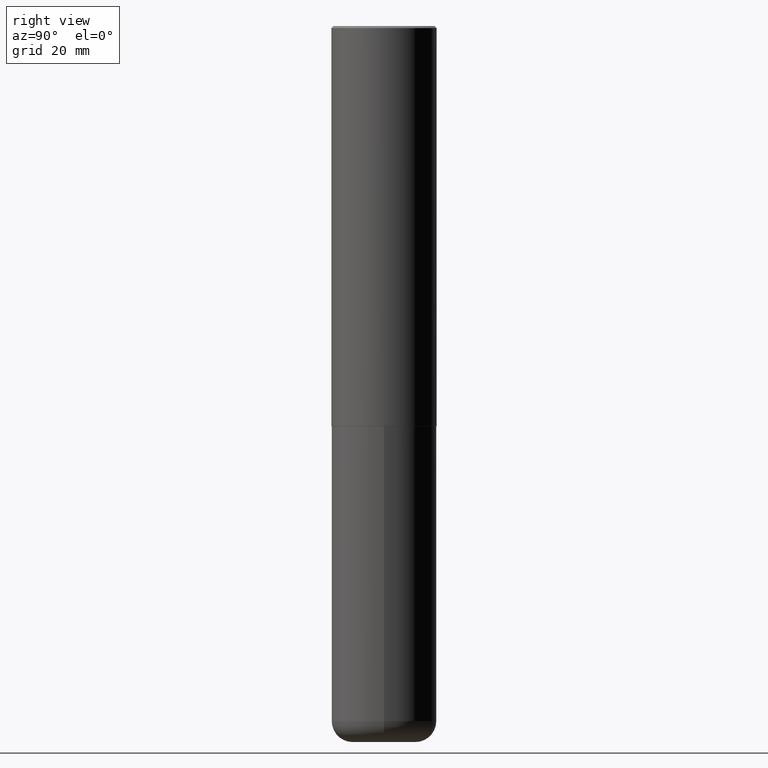
[diagram: clean part render]
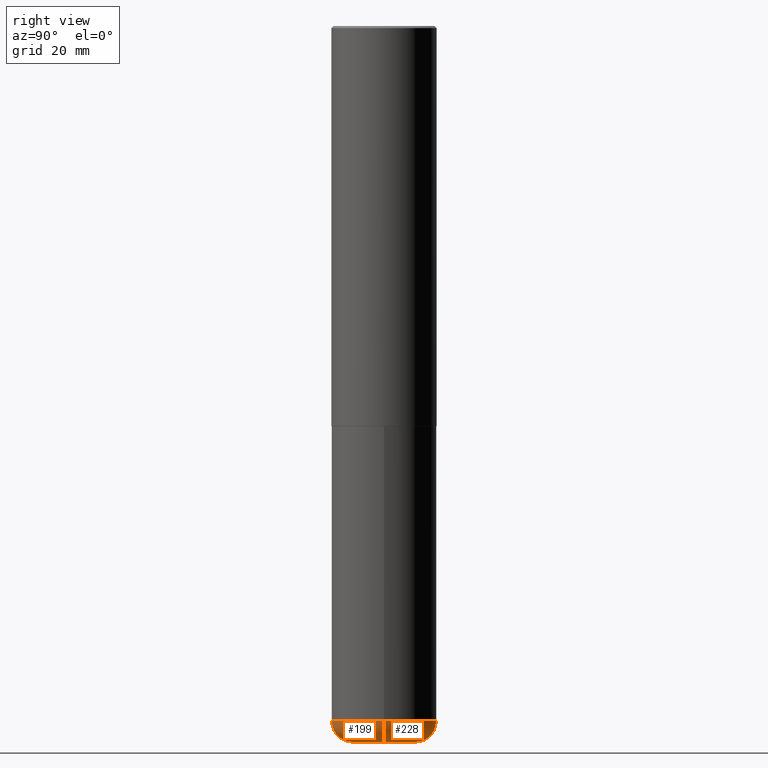
[diagram: same view with one multi-face feature highlighted, each face labeled with its STEP entity id]
A machine part, right view. The highlighted faces form ONE feature: a constant-radius fillet chain: 2 tangent blend faces with common blend radius 5.0013 mm. The faces share edges in the B-rep.
Their STEP definitions:
[1] entity #199 (Torus):
#10 = CIRCLE ( 'NONE', #140, 0.4921499999999999764 ) ;
#12 = DIRECTION ( 'NONE',  ( 7.105427357601001859E-15, 1.000000000000000000, -3.491481338843145583E-15 ) ) ;
#16 = DIRECTION ( 'NONE',  ( -2.445468806185136597E-29, 3.491481338843145583E-15, 1.000000000000000000 ) ) ;
#37 = CIRCLE ( 'NONE', #178, 0.1968999999999995754 ) ;
#41 = DIRECTION ( 'NONE',  ( -2.445468806185136597E-29, 3.491481338843145583E-15, 1.000000000000000000 ) ) ;
#42 = EDGE_CURVE ( 'NONE', #95, #332, #10, .T. ) ;
#72 = CIRCLE ( 'NONE', #206, 0.2952500000000000124 ) ;
#79 = ORIENTED_EDGE ( 'NONE', *, *, #42, .F. ) ;
#82 = EDGE_CURVE ( 'NONE', #383, #95, #37, .T. ) ;
#95 = VERTEX_POINT ( 'NONE', #213 ) ;
#115 = DIRECTION ( 'NONE',  ( 1.000000000000000000, -6.982962677686265922E-15, 0.000000000000000000 ) ) ;
#124 = CARTESIAN_POINT ( 'NONE',  ( -0.2952500000000000124, -2.022699236424666989E-14, -6.692899999999998961 ) ) ;
#140 = AXIS2_PLACEMENT_3D ( 'NONE', #313, #16, #115 ) ;
#143 = DIRECTION ( 'NONE',  ( 1.000000000000000000, -6.982962677686264344E-15, 4.883557194083111780E-29 ) ) ;
#162 = EDGE_CURVE ( 'NONE', #383, #333, #72, .T. ) ;
#165 = ORIENTED_EDGE ( 'NONE', *, *, #212, .T. ) ;
#176 = CARTESIAN_POINT ( 'NONE',  ( 1.588576536497864771E-28, -2.268066277712507367E-14, -6.495999999999999552 ) ) ;
#178 = AXIS2_PLACEMENT_3D ( 'NONE', #306, #12, #371 ) ;
#199 = ADVANCED_FACE ( 'NONE', ( #377 ), #248, .T. ) ;
#201 = ORIENTED_EDGE ( 'NONE', *, *, #82, .F. ) ;
#206 = AXIS2_PLACEMENT_3D ( 'NONE', #351, #310, #242 ) ;
#212 = EDGE_CURVE ( 'NONE', #333, #332, #395, .T. ) ;
#213 = CARTESIAN_POINT ( 'NONE',  ( -0.4921499999999997543, -1.918372670308173998E-14, -6.495999999999999552 ) ) ;
#218 = CARTESIAN_POINT ( 'NONE',  ( 0.2952499999999999569, -2.474238250771194590E-14, -6.495999999999999552 ) ) ;
#242 = DIRECTION ( 'NONE',  ( 1.000000000000000000, -6.982962677686273021E-15, 0.000000000000000000 ) ) ;
#244 = AXIS2_PLACEMENT_3D ( 'NONE', #176, #41, #143 ) ;
#248 = TOROIDAL_SURFACE ( 'NONE', #244, 0.2952499999999999569, 0.1968999999999996031 ) ;
#278 = DIRECTION ( 'NONE',  ( -6.982962677686266711E-15, -1.000000000000000000, 3.491481338843145583E-15 ) ) ;
#289 = EDGE_LOOP ( 'NONE', ( #201, #327, #165, #79 ) ) ;
#299 = AXIS2_PLACEMENT_3D ( 'NONE', #218, #278, #305 ) ;
#305 = DIRECTION ( 'NONE',  ( 1.000000000000000000, -6.982962677686270655E-15, 0.000000000000000000 ) ) ;
#306 = CARTESIAN_POINT ( 'NONE',  ( -0.2952499999999999569, -2.058278534979337620E-14, -6.495999999999999552 ) ) ;
#310 = DIRECTION ( 'NONE',  ( -2.445468806185136597E-29, 3.491481338843145583E-15, 1.000000000000000000 ) ) ;
#313 = CARTESIAN_POINT ( 'NONE',  ( 1.588576536497864771E-28, -2.268066277712507367E-14, -6.495999999999999552 ) ) ;
#317 = CARTESIAN_POINT ( 'NONE',  ( 0.2952500000000000124, -2.542985518333015688E-14, -6.692899999999998961 ) ) ;
#320 = CARTESIAN_POINT ( 'NONE',  ( 0.4921499999999997543, -2.611732785894836787E-14, -6.495999999999999552 ) ) ;
#327 = ORIENTED_EDGE ( 'NONE', *, *, #162, .T. ) ;
#332 = VERTEX_POINT ( 'NONE', #320 ) ;
#333 = VERTEX_POINT ( 'NONE', #317 ) ;
#351 = CARTESIAN_POINT ( 'NONE',  ( 1.636727817291649742E-28, -2.336813545274328465E-14, -6.692899999999998961 ) ) ;
#371 = DIRECTION ( 'NONE',  ( -1.000000000000000000, 7.105427357601008170E-15, 0.000000000000000000 ) ) ;
#377 = FACE_OUTER_BOUND ( 'NONE', #289, .T. ) ;
#383 = VERTEX_POINT ( 'NONE', #124 ) ;
#395 = CIRCLE ( 'NONE', #299, 0.1968999999999995754 ) ;
[2] entity #228 (Torus):
#4 = CIRCLE ( 'NONE', #80, 0.4921499999999999764 ) ;
#12 = DIRECTION ( 'NONE',  ( 7.105427357601001859E-15, 1.000000000000000000, -3.491481338843145583E-15 ) ) ;
#29 = EDGE_CURVE ( 'NONE', #332, #95, #4, .T. ) ;
#37 = CIRCLE ( 'NONE', #178, 0.1968999999999995754 ) ;
#39 = DIRECTION ( 'NONE',  ( -2.445468806185136597E-29, 3.491481338843145583E-15, 1.000000000000000000 ) ) ;
#46 = CIRCLE ( 'NONE', #112, 0.2952500000000000124 ) ;
#59 = AXIS2_PLACEMENT_3D ( 'NONE', #76, #148, #209 ) ;
#76 = CARTESIAN_POINT ( 'NONE',  ( 1.588576536497864771E-28, -2.268066277712507367E-14, -6.495999999999999552 ) ) ;
#80 = AXIS2_PLACEMENT_3D ( 'NONE', #373, #210, #399 ) ;
#82 = EDGE_CURVE ( 'NONE', #383, #95, #37, .T. ) ;
#92 = ORIENTED_EDGE ( 'NONE', *, *, #29, .F. ) ;
#95 = VERTEX_POINT ( 'NONE', #213 ) ;
#112 = AXIS2_PLACEMENT_3D ( 'NONE', #369, #39, #343 ) ;
#124 = CARTESIAN_POINT ( 'NONE',  ( -0.2952500000000000124, -2.022699236424666989E-14, -6.692899999999998961 ) ) ;
#137 = EDGE_LOOP ( 'NONE', ( #301, #387, #92, #416 ) ) ;
#148 = DIRECTION ( 'NONE',  ( -2.445468806185136597E-29, 3.491481338843145583E-15, 1.000000000000000000 ) ) ;
#178 = AXIS2_PLACEMENT_3D ( 'NONE', #306, #12, #371 ) ;
#209 = DIRECTION ( 'NONE',  ( 1.000000000000000000, -6.982962677686264344E-15, 4.883557194083111780E-29 ) ) ;
#210 = DIRECTION ( 'NONE',  ( -2.445468806185136597E-29, 3.491481338843145583E-15, 1.000000000000000000 ) ) ;
#212 = EDGE_CURVE ( 'NONE', #333, #332, #395, .T. ) ;
#213 = CARTESIAN_POINT ( 'NONE',  ( -0.4921499999999997543, -1.918372670308173998E-14, -6.495999999999999552 ) ) ;
#218 = CARTESIAN_POINT ( 'NONE',  ( 0.2952499999999999569, -2.474238250771194590E-14, -6.495999999999999552 ) ) ;
#228 = ADVANCED_FACE ( 'NONE', ( #403 ), #259, .T. ) ;
#259 = TOROIDAL_SURFACE ( 'NONE', #59, 0.2952499999999999569, 0.1968999999999996031 ) ;
#278 = DIRECTION ( 'NONE',  ( -6.982962677686266711E-15, -1.000000000000000000, 3.491481338843145583E-15 ) ) ;
#299 = AXIS2_PLACEMENT_3D ( 'NONE', #218, #278, #305 ) ;
#301 = ORIENTED_EDGE ( 'NONE', *, *, #318, .T. ) ;
#305 = DIRECTION ( 'NONE',  ( 1.000000000000000000, -6.982962677686270655E-15, 0.000000000000000000 ) ) ;
#306 = CARTESIAN_POINT ( 'NONE',  ( -0.2952499999999999569, -2.058278534979337620E-14, -6.495999999999999552 ) ) ;
#317 = CARTESIAN_POINT ( 'NONE',  ( 0.2952500000000000124, -2.542985518333015688E-14, -6.692899999999998961 ) ) ;
#318 = EDGE_CURVE ( 'NONE', #333, #383, #46, .T. ) ;
#320 = CARTESIAN_POINT ( 'NONE',  ( 0.4921499999999997543, -2.611732785894836787E-14, -6.495999999999999552 ) ) ;
#332 = VERTEX_POINT ( 'NONE', #320 ) ;
#333 = VERTEX_POINT ( 'NONE', #317 ) ;
#343 = DIRECTION ( 'NONE',  ( 1.000000000000000000, -6.982962677686273021E-15, 0.000000000000000000 ) ) ;
#369 = CARTESIAN_POINT ( 'NONE',  ( 1.636727817291649742E-28, -2.336813545274328465E-14, -6.692899999999998961 ) ) ;
#371 = DIRECTION ( 'NONE',  ( -1.000000000000000000, 7.105427357601008170E-15, 0.000000000000000000 ) ) ;
#373 = CARTESIAN_POINT ( 'NONE',  ( 1.588576536497864771E-28, -2.268066277712507367E-14, -6.495999999999999552 ) ) ;
#383 = VERTEX_POINT ( 'NONE', #124 ) ;
#387 = ORIENTED_EDGE ( 'NONE', *, *, #82, .T. ) ;
#395 = CIRCLE ( 'NONE', #299, 0.1968999999999995754 ) ;
#399 = DIRECTION ( 'NONE',  ( 1.000000000000000000, -6.982962677686265922E-15, 0.000000000000000000 ) ) ;
#403 = FACE_OUTER_BOUND ( 'NONE', #137, .T. ) ;
#416 = ORIENTED_EDGE ( 'NONE', *, *, #212, .F. ) ;